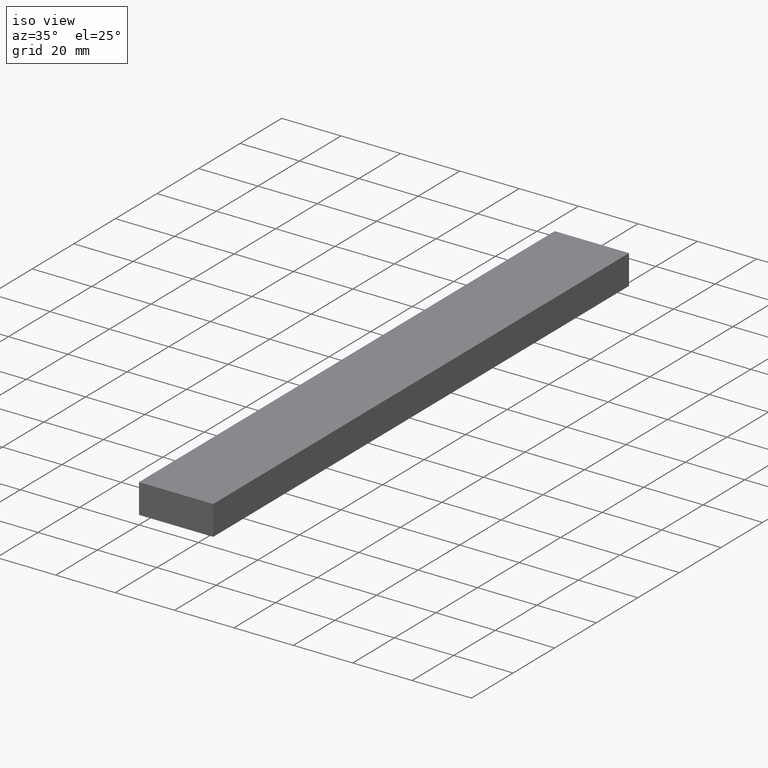
[diagram: clean part render]
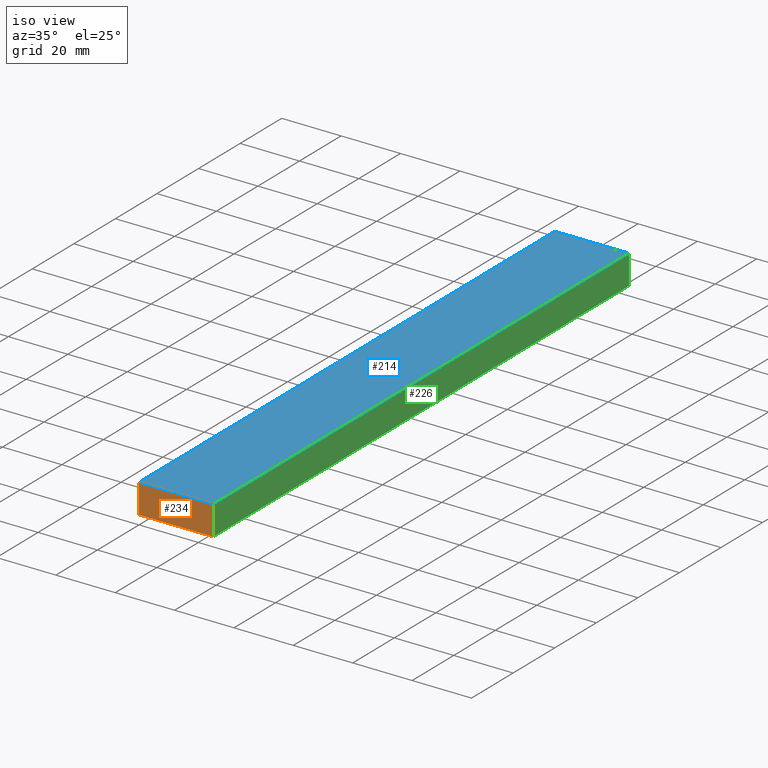
[diagram: same view with three faces highlighted in distinct colors, each labeled with its STEP entity id]
A machine part, iso view with three faces highlighted in distinct colors.
Their STEP definitions:

[orange] entity #234 — the highlighted planar face has unit normal (0, 1, 0).
#10 = CARTESIAN_POINT ( 'NONE',  ( 25.00000000000000000, 0.0000000000000000000, 0.0000000000000000000 ) ) ;
#18 = VERTEX_POINT ( 'NONE', #52 ) ;
#27 = CARTESIAN_POINT ( 'NONE',  ( 0.0000000000000000000, 0.0000000000000000000, 0.0000000000000000000 ) ) ;
#39 = DIRECTION ( 'NONE',  ( 1.000000000000000000, 0.0000000000000000000, 0.0000000000000000000 ) ) ;
#47 = FACE_OUTER_BOUND ( 'NONE', #69, .T. ) ;
#48 = LINE ( 'NONE', #142, #114 ) ;
#51 = LINE ( 'NONE', #171, #232 ) ;
#52 = CARTESIAN_POINT ( 'NONE',  ( 25.00000000000000000, 0.0000000000000000000, 10.00000000000000000 ) ) ;
#69 = EDGE_LOOP ( 'NONE', ( #139, #90, #107, #179 ) ) ;
#82 = CARTESIAN_POINT ( 'NONE',  ( 0.0000000000000000000, 0.0000000000000000000, 0.0000000000000000000 ) ) ;
#84 = VECTOR ( 'NONE', #172, 1000.000000000000000 ) ;
#85 = LINE ( 'NONE', #87, #84 ) ;
#87 = CARTESIAN_POINT ( 'NONE',  ( 25.00000000000000000, 0.0000000000000000000, 10.00000000000000000 ) ) ;
#90 = ORIENTED_EDGE ( 'NONE', *, *, #199, .F. ) ;
#95 = VECTOR ( 'NONE', #201, 1000.000000000000000 ) ;
#103 = AXIS2_PLACEMENT_3D ( 'NONE', #27, #213, #197 ) ;
#107 = ORIENTED_EDGE ( 'NONE', *, *, #237, .F. ) ;
#114 = VECTOR ( 'NONE', #177, 1000.000000000000000 ) ;
#139 = ORIENTED_EDGE ( 'NONE', *, *, #166, .F. ) ;
#142 = CARTESIAN_POINT ( 'NONE',  ( 0.0000000000000000000, 0.0000000000000000000, 0.0000000000000000000 ) ) ;
#149 = CARTESIAN_POINT ( 'NONE',  ( 0.0000000000000000000, 0.0000000000000000000, 10.00000000000000000 ) ) ;
#151 = EDGE_CURVE ( 'NONE', #18, #229, #85, .T. ) ;
#153 = PLANE ( 'NONE',  #103 ) ;
#166 = EDGE_CURVE ( 'NONE', #186, #18, #51, .T. ) ;
#171 = CARTESIAN_POINT ( 'NONE',  ( 0.0000000000000000000, 0.0000000000000000000, 10.00000000000000000 ) ) ;
#172 = DIRECTION ( 'NONE',  ( 0.0000000000000000000, 0.0000000000000000000, -1.000000000000000000 ) ) ;
#177 = DIRECTION ( 'NONE',  ( 0.0000000000000000000, 0.0000000000000000000, 1.000000000000000000 ) ) ;
#179 = ORIENTED_EDGE ( 'NONE', *, *, #151, .F. ) ;
#181 = CARTESIAN_POINT ( 'NONE',  ( 25.00000000000000000, 0.0000000000000000000, 0.0000000000000000000 ) ) ;
#186 = VERTEX_POINT ( 'NONE', #149 ) ;
#197 = DIRECTION ( 'NONE',  ( 1.000000000000000000, 0.0000000000000000000, 0.0000000000000000000 ) ) ;
#199 = EDGE_CURVE ( 'NONE', #220, #186, #48, .T. ) ;
#201 = DIRECTION ( 'NONE',  ( -1.000000000000000000, 0.0000000000000000000, 0.0000000000000000000 ) ) ;
#213 = DIRECTION ( 'NONE',  ( -0.0000000000000000000, 1.000000000000000000, 0.0000000000000000000 ) ) ;
#220 = VERTEX_POINT ( 'NONE', #82 ) ;
#221 = LINE ( 'NONE', #181, #95 ) ;
#229 = VERTEX_POINT ( 'NONE', #10 ) ;
#232 = VECTOR ( 'NONE', #39, 1000.000000000000000 ) ;
#234 = ADVANCED_FACE ( 'NONE', ( #47 ), #153, .F. ) ;
#237 = EDGE_CURVE ( 'NONE', #229, #220, #221, .T. ) ;

[blue] entity #214 — the highlighted planar face has unit normal (0, 0, -1).
#1 = VECTOR ( 'NONE', #173, 1000.000000000000000 ) ;
#2 = ORIENTED_EDGE ( 'NONE', *, *, #166, .T. ) ;
#3 = CARTESIAN_POINT ( 'NONE',  ( 0.0000000000000000000, 1000.000000000000000, 10.00000000000000000 ) ) ;
#11 = ORIENTED_EDGE ( 'NONE', *, *, #207, .T. ) ;
#18 = VERTEX_POINT ( 'NONE', #52 ) ;
#29 = DIRECTION ( 'NONE',  ( 1.000000000000000000, 0.0000000000000000000, 0.0000000000000000000 ) ) ;
#39 = DIRECTION ( 'NONE',  ( 1.000000000000000000, 0.0000000000000000000, 0.0000000000000000000 ) ) ;
#51 = LINE ( 'NONE', #171, #232 ) ;
#52 = CARTESIAN_POINT ( 'NONE',  ( 25.00000000000000000, 0.0000000000000000000, 10.00000000000000000 ) ) ;
#62 = VERTEX_POINT ( 'NONE', #146 ) ;
#71 = EDGE_CURVE ( 'NONE', #62, #167, #122, .T. ) ;
#81 = CARTESIAN_POINT ( 'NONE',  ( 25.00000000000000000, 200.0000000000000000, 10.00000000000000000 ) ) ;
#86 = PLANE ( 'NONE',  #211 ) ;
#92 = EDGE_CURVE ( 'NONE', #167, #18, #97, .T. ) ;
#97 = LINE ( 'NONE', #109, #145 ) ;
#109 = CARTESIAN_POINT ( 'NONE',  ( 25.00000000000000000, 1000.000000000000000, 10.00000000000000000 ) ) ;
#120 = DIRECTION ( 'NONE',  ( -1.000000000000000000, 0.0000000000000000000, 0.0000000000000000000 ) ) ;
#121 = FACE_OUTER_BOUND ( 'NONE', #198, .T. ) ;
#122 = LINE ( 'NONE', #206, #163 ) ;
#128 = DIRECTION ( 'NONE',  ( 0.0000000000000000000, 0.0000000000000000000, -1.000000000000000000 ) ) ;
#145 = VECTOR ( 'NONE', #165, 1000.000000000000000 ) ;
#146 = CARTESIAN_POINT ( 'NONE',  ( 0.0000000000000000000, 200.0000000000000000, 10.00000000000000000 ) ) ;
#149 = CARTESIAN_POINT ( 'NONE',  ( 0.0000000000000000000, 0.0000000000000000000, 10.00000000000000000 ) ) ;
#163 = VECTOR ( 'NONE', #29, 1000.000000000000000 ) ;
#165 = DIRECTION ( 'NONE',  ( 0.0000000000000000000, -1.000000000000000000, 0.0000000000000000000 ) ) ;
#166 = EDGE_CURVE ( 'NONE', #186, #18, #51, .T. ) ;
#167 = VERTEX_POINT ( 'NONE', #81 ) ;
#171 = CARTESIAN_POINT ( 'NONE',  ( 0.0000000000000000000, 0.0000000000000000000, 10.00000000000000000 ) ) ;
#173 = DIRECTION ( 'NONE',  ( 0.0000000000000000000, -1.000000000000000000, 0.0000000000000000000 ) ) ;
#175 = LINE ( 'NONE', #228, #1 ) ;
#185 = ORIENTED_EDGE ( 'NONE', *, *, #71, .F. ) ;
#186 = VERTEX_POINT ( 'NONE', #149 ) ;
#198 = EDGE_LOOP ( 'NONE', ( #2, #208, #185, #11 ) ) ;
#206 = CARTESIAN_POINT ( 'NONE',  ( 0.0000000000000000000, 200.0000000000000000, 10.00000000000000000 ) ) ;
#207 = EDGE_CURVE ( 'NONE', #62, #186, #175, .T. ) ;
#208 = ORIENTED_EDGE ( 'NONE', *, *, #92, .F. ) ;
#211 = AXIS2_PLACEMENT_3D ( 'NONE', #3, #128, #120 ) ;
#214 = ADVANCED_FACE ( 'NONE', ( #121 ), #86, .F. ) ;
#228 = CARTESIAN_POINT ( 'NONE',  ( 0.0000000000000000000, 1000.000000000000000, 10.00000000000000000 ) ) ;
#232 = VECTOR ( 'NONE', #39, 1000.000000000000000 ) ;

[green] entity #226 — the highlighted planar face has unit normal (-1, 0, 0).
#10 = CARTESIAN_POINT ( 'NONE',  ( 25.00000000000000000, 0.0000000000000000000, 0.0000000000000000000 ) ) ;
#13 = DIRECTION ( 'NONE',  ( 0.0000000000000000000, -1.000000000000000000, 0.0000000000000000000 ) ) ;
#16 = EDGE_CURVE ( 'NONE', #167, #98, #101, .T. ) ;
#18 = VERTEX_POINT ( 'NONE', #52 ) ;
#22 = DIRECTION ( 'NONE',  ( 0.0000000000000000000, 0.0000000000000000000, 1.000000000000000000 ) ) ;
#23 = CARTESIAN_POINT ( 'NONE',  ( 25.00000000000000000, 1000.000000000000000, 10.00000000000000000 ) ) ;
#28 = ORIENTED_EDGE ( 'NONE', *, *, #205, .F. ) ;
#52 = CARTESIAN_POINT ( 'NONE',  ( 25.00000000000000000, 0.0000000000000000000, 10.00000000000000000 ) ) ;
#55 = ORIENTED_EDGE ( 'NONE', *, *, #151, .T. ) ;
#64 = VECTOR ( 'NONE', #13, 1000.000000000000000 ) ;
#74 = DIRECTION ( 'NONE',  ( 0.0000000000000000000, 0.0000000000000000000, -1.000000000000000000 ) ) ;
#75 = PLANE ( 'NONE',  #156 ) ;
#78 = DIRECTION ( 'NONE',  ( -1.000000000000000000, 0.0000000000000000000, 0.0000000000000000000 ) ) ;
#81 = CARTESIAN_POINT ( 'NONE',  ( 25.00000000000000000, 200.0000000000000000, 10.00000000000000000 ) ) ;
#84 = VECTOR ( 'NONE', #172, 1000.000000000000000 ) ;
#85 = LINE ( 'NONE', #87, #84 ) ;
#87 = CARTESIAN_POINT ( 'NONE',  ( 25.00000000000000000, 0.0000000000000000000, 10.00000000000000000 ) ) ;
#92 = EDGE_CURVE ( 'NONE', #167, #18, #97, .T. ) ;
#96 = VECTOR ( 'NONE', #74, 1000.000000000000000 ) ;
#97 = LINE ( 'NONE', #109, #145 ) ;
#98 = VERTEX_POINT ( 'NONE', #187 ) ;
#101 = LINE ( 'NONE', #192, #96 ) ;
#109 = CARTESIAN_POINT ( 'NONE',  ( 25.00000000000000000, 1000.000000000000000, 10.00000000000000000 ) ) ;
#127 = ORIENTED_EDGE ( 'NONE', *, *, #92, .T. ) ;
#140 = EDGE_LOOP ( 'NONE', ( #55, #28, #144, #127 ) ) ;
#144 = ORIENTED_EDGE ( 'NONE', *, *, #16, .F. ) ;
#145 = VECTOR ( 'NONE', #165, 1000.000000000000000 ) ;
#151 = EDGE_CURVE ( 'NONE', #18, #229, #85, .T. ) ;
#156 = AXIS2_PLACEMENT_3D ( 'NONE', #23, #78, #22 ) ;
#158 = LINE ( 'NONE', #194, #64 ) ;
#165 = DIRECTION ( 'NONE',  ( 0.0000000000000000000, -1.000000000000000000, 0.0000000000000000000 ) ) ;
#167 = VERTEX_POINT ( 'NONE', #81 ) ;
#172 = DIRECTION ( 'NONE',  ( 0.0000000000000000000, 0.0000000000000000000, -1.000000000000000000 ) ) ;
#187 = CARTESIAN_POINT ( 'NONE',  ( 25.00000000000000000, 200.0000000000000000, 0.0000000000000000000 ) ) ;
#192 = CARTESIAN_POINT ( 'NONE',  ( 25.00000000000000000, 200.0000000000000000, 10.00000000000000000 ) ) ;
#194 = CARTESIAN_POINT ( 'NONE',  ( 25.00000000000000000, 1000.000000000000000, 0.0000000000000000000 ) ) ;
#204 = FACE_OUTER_BOUND ( 'NONE', #140, .T. ) ;
#205 = EDGE_CURVE ( 'NONE', #98, #229, #158, .T. ) ;
#226 = ADVANCED_FACE ( 'NONE', ( #204 ), #75, .F. ) ;
#229 = VERTEX_POINT ( 'NONE', #10 ) ;